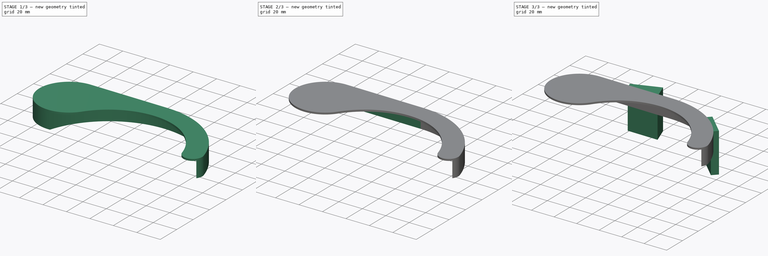
[diagram: build sequence overview — one tinted view per stage of 3, left to right]
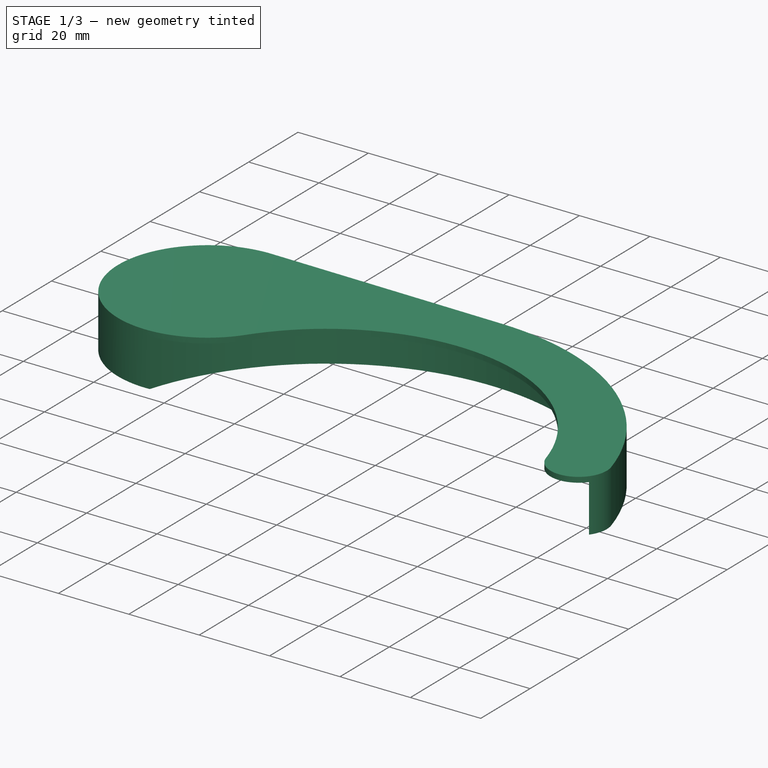
[diagram: stage 1 of 3 — iso view after this stage's code; geometry added in this stage tinted green]
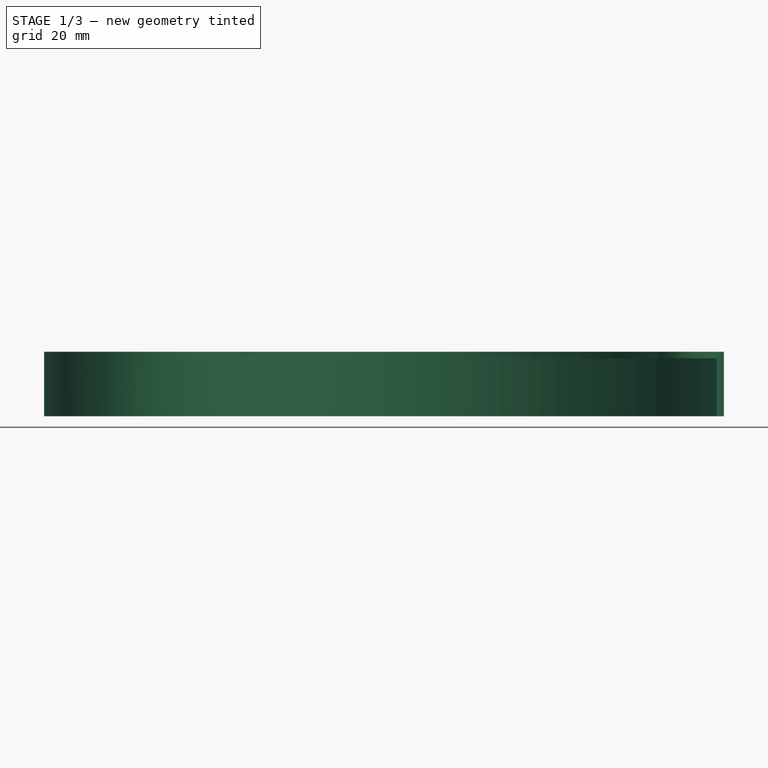
[diagram: stage 1 of 3 — front view after this stage's code; geometry added in this stage tinted green]
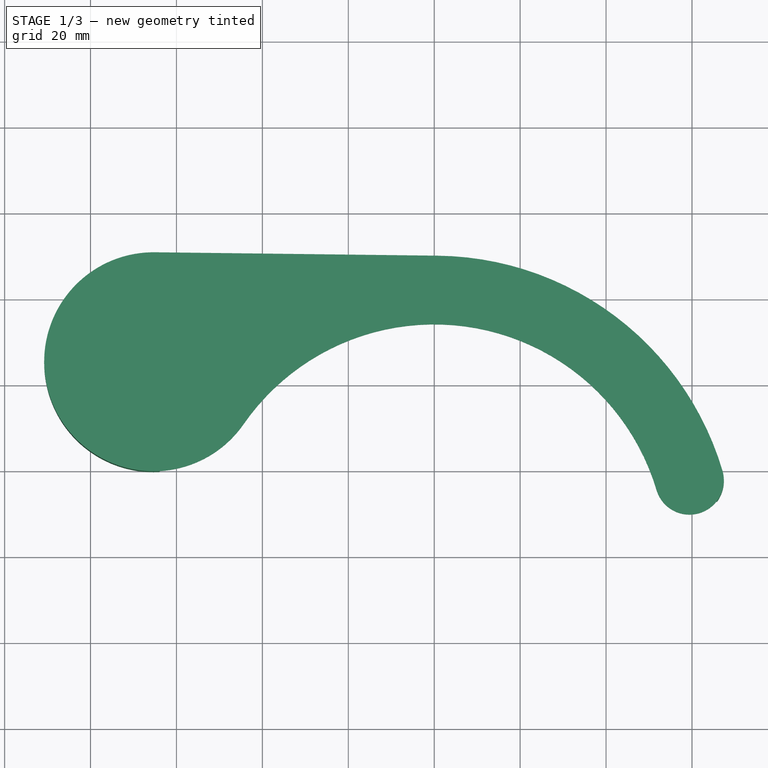
[diagram: stage 1 of 3 — top view after this stage's code; geometry added in this stage tinted green]
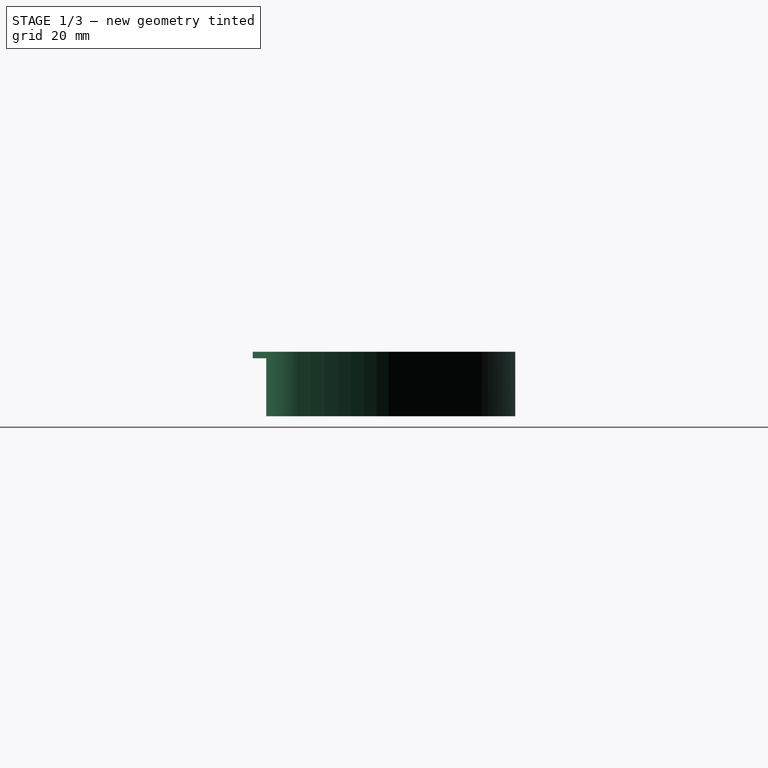
[diagram: stage 1 of 3 — right view after this stage's code; geometry added in this stage tinted green]
FCSTD DOCUMENT  (FreeCAD 0.16R)
Label: 32t
License: All rights reserved
LicenseURL: http://en.wikipedia.org/wiki/All_rights_reserved
objects: Sketcher::SketchObject×5, PartDesign::Pad×3, PartDesign::Pocket×2
note: 15 computed .brp shape members not serialized (recipe doc carries the construction recipe); baked Part::Feature solids carry a one-line shape summary decoded from their .brp

FEATURE [Sketcher::SketchObject] Sketch001
  sketch-geometry (10):
    g0: LineSegment [constr] StartX=0 StartY=0 StartZ=0 EndX=-51.303 EndY=140.954 EndZ=0
    g1: LineSegment [constr] StartX=0 StartY=0 StartZ=0 EndX=104.199 EndY=107.901 EndZ=0
    g2: Circle [constr] CenterX=0 CenterY=0 CenterZ=0 NormalX=0 NormalY=0 NormalZ=1 Radius=65
    g3: Circle [constr] CenterX=-330 CenterY=50 CenterZ=0 NormalX=0 NormalY=0 NormalZ=1 Radius=19
    g4: LineSegment [constr] StartX=-329.77 StartY=68.9986 StartZ=0 EndX=0.787158 EndY=64.9952 EndZ=0
    g5: ArcOfCircle CenterX=0 CenterY=0 CenterZ=0 NormalX=0 NormalY=0 NormalZ=1 Radius=70 StartAngle=0.289752 EndAngle=1.55869
    g6: LineSegment StartX=0.847707 StartY=69.9949 StartZ=0 EndX=-65 EndY=70.7923 EndZ=0
    g7: ArcOfCircle CenterX=-65.3087 CenterY=45.3081 CenterZ=0 NormalX=0 NormalY=0 NormalZ=1 Radius=25.4861 StartAngle=1.55868 EndAngle=5.67666
    g8: ArcOfCircle CenterX=59.4155 CenterY=17.7143 CenterZ=0 NormalX=0 NormalY=0 NormalZ=1 Radius=8 StartAngle=3.43134 EndAngle=6.57294
    g9: ArcOfCircle CenterX=0 CenterY=0 CenterZ=0 NormalX=0 NormalY=0 NormalZ=1 Radius=54 StartAngle=0.289752 EndAngle=2.53507
  constraints (32):
    c: Coincident(g0,g-1)
    c: Coincident(g1,g-1)
    c: Angle(g1,g0) = 1.11701
    c: Angle(g0) = 1.91986
    c: Coincident(g2,g-1)
    c: Radius(g2) = 65
    c: DistanceX(g3) = -330
    c: Radius(g3) = 19
    c: PointOnObject(g4,g3)
    c: PointOnObject(g4,g2)
    c: Tangent(g4,g2)
    c: Tangent(g4,g3)
    c: DistanceY(g3) = 50
    c: Distance(g0) = 150
    c: Distance(g1) = 150
    c: Coincident(g5,g-1)
    c: Radius(g5) = 70
    c: Coincident(g6,g5)
    c: Tangent(g5,g6)
    c: Parallel(g6,g4)
    c: Coincident(g7,g6)
    c: Tangent(g6,g7)
    c: Tangent(g8,g5)
    c: Coincident(g8,g5)
    c: Radius(g8) = 8
    c: Coincident(g9,g-1)
    c: Coincident(g9,g8)
    c: Tangent(g8,g9)
    c: Coincident(g7,g9)
    c: Tangent(g7,g9)
    c: DistanceX(g6) = -65
    c: DistanceY(g5) = 20
FEATURE [PartDesign::Pad] Pad
  Length = 15
  Length2 = 100
  Sketch = -> Sketch001
  Type = 0
FEATURE [Sketcher::SketchObject] Sketch002
  Placement = pos=(0,0,0) rot=(1,0,0;3.14159rad)
  Support = -> Pad [Face6]
  sketch-geometry (1):
    g0: Circle CenterX=0 CenterY=0 CenterZ=0 NormalX=0 NormalY=0 NormalZ=1 Radius=67
  constraints (2):
    c: Coincident(g0,g-1)
    c: Radius(g0) = 67
FEATURE [PartDesign::Pocket] Pocket
  Length = 13.5
  Sketch = -> Sketch002
  Type = 0
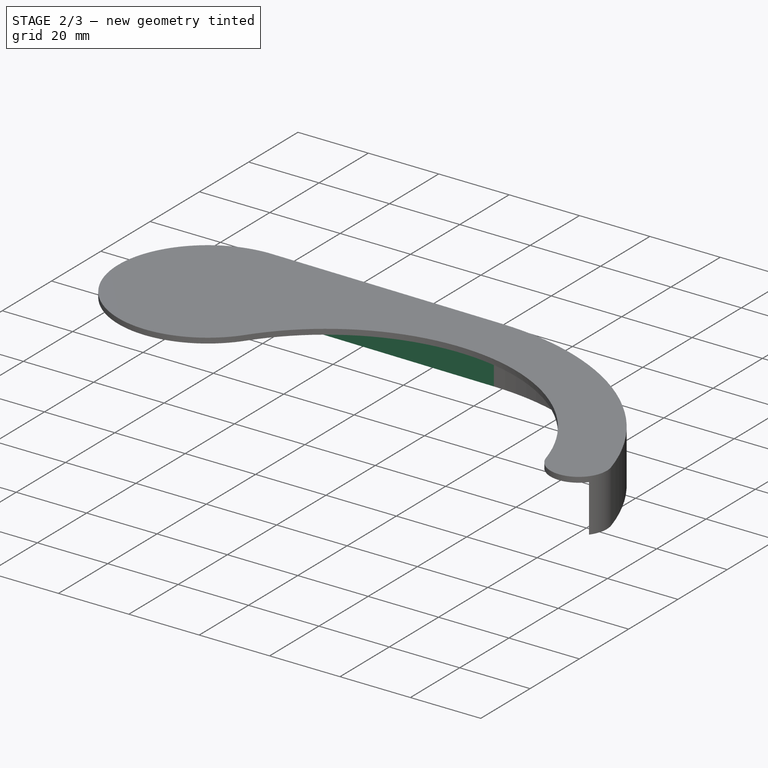
[diagram: stage 2 of 3 — iso view after this stage's code; geometry added in this stage tinted green]
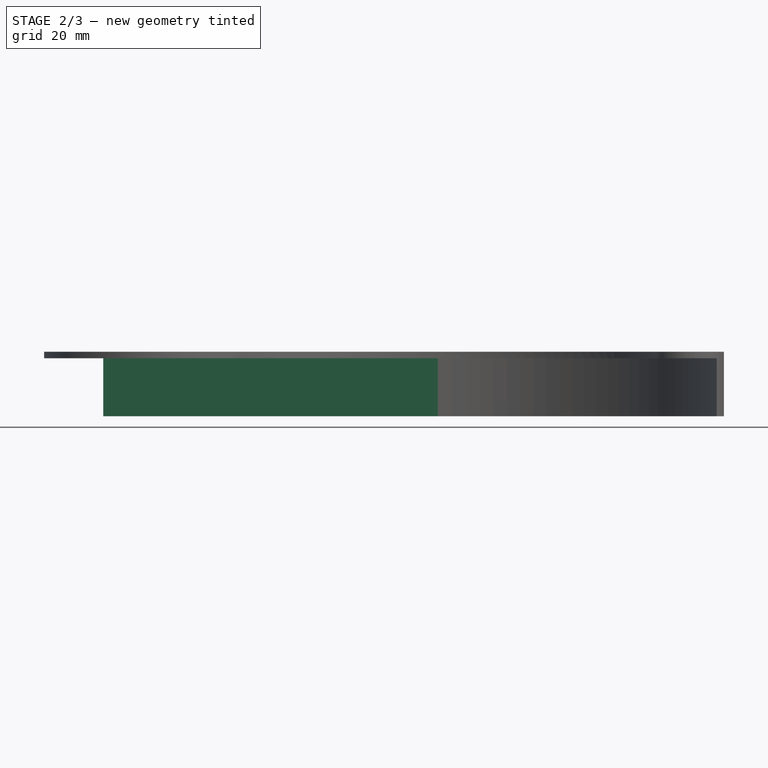
[diagram: stage 2 of 3 — front view after this stage's code; geometry added in this stage tinted green]
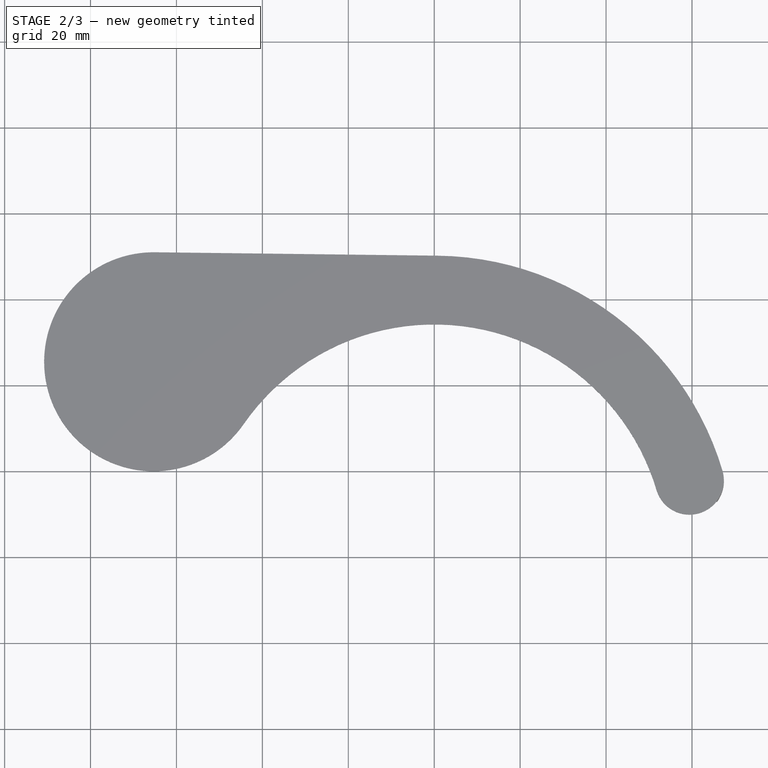
[diagram: stage 2 of 3 — top view after this stage's code; geometry added in this stage tinted green]
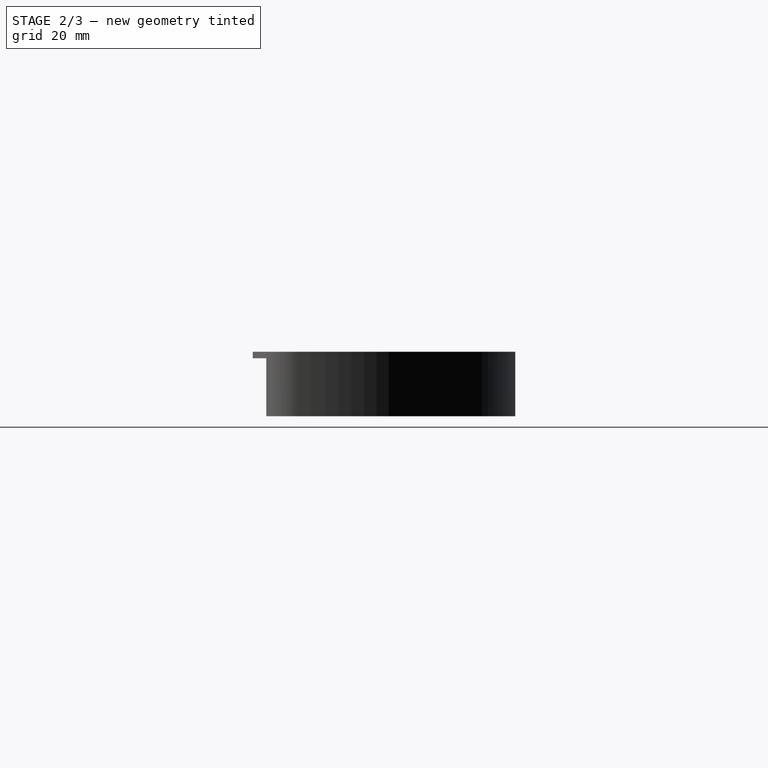
[diagram: stage 2 of 3 — right view after this stage's code; geometry added in this stage tinted green]
FEATURE [Sketcher::SketchObject] Sketch003
  ExternalGeometry = -> [Pocket]
  Placement = pos=(0,0,0) rot=(1,0,0;3.14159rad)
  Support = -> Pocket [Face4]
  sketch-geometry (3):
    g0: LineSegment StartX=-152.534 StartY=-68.8523 StartZ=0 EndX=0.811393 EndY=-66.9951 EndZ=0
    g1: LineSegment StartX=0.811393 StartY=-66.9951 StartZ=0 EndX=-35.4631 EndY=35.7409 EndZ=0
    g2: LineSegment StartX=-35.4631 StartY=35.7409 StartZ=0 EndX=-152.534 EndY=-68.8523 EndZ=0
  constraints (9):
    c: Coincident(g0,g1)
    c: Coincident(g1,g2)
    c: Coincident(g0,g2)
    c: PointOnObject(g0,g-4)
    c: Tangent(g0,g-4)
    c: Parallel(g0,g-3)
    c: DistanceY(g1) = 35.7409
    c: DistanceX(g1) = -35.4631
    c: Distance(g0) = 153.357
FEATURE [PartDesign::Pocket] Pocket001
  Length = 13.5
  Sketch = -> Sketch003
  Type = 0
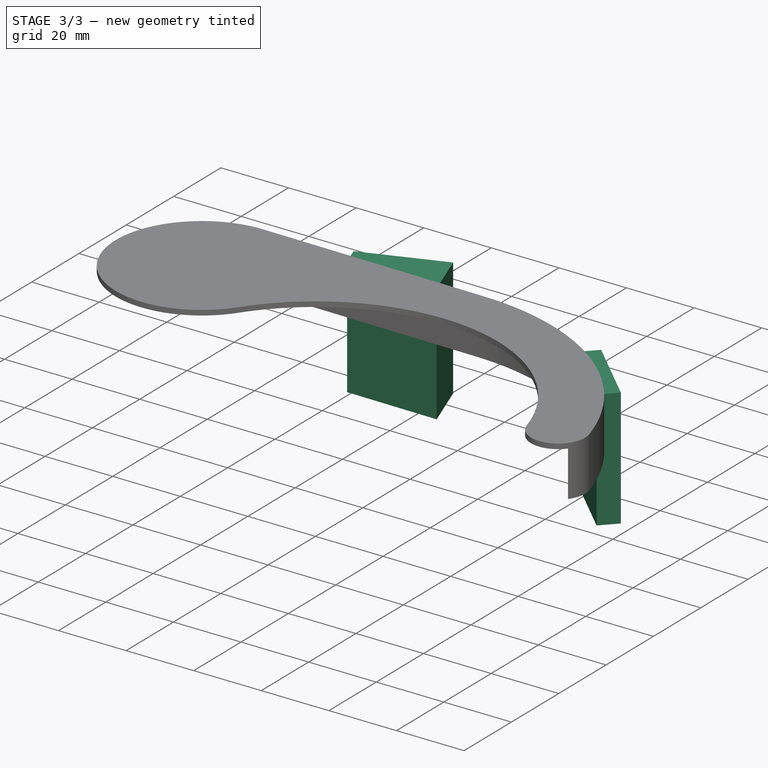
[diagram: stage 3 of 3 — iso view after this stage's code; geometry added in this stage tinted green]
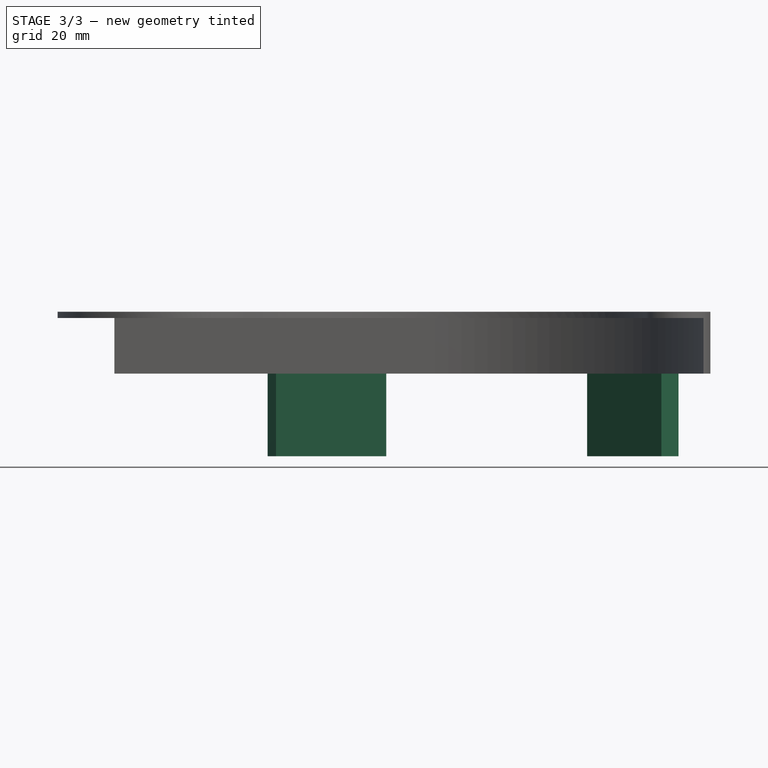
[diagram: stage 3 of 3 — front view after this stage's code; geometry added in this stage tinted green]
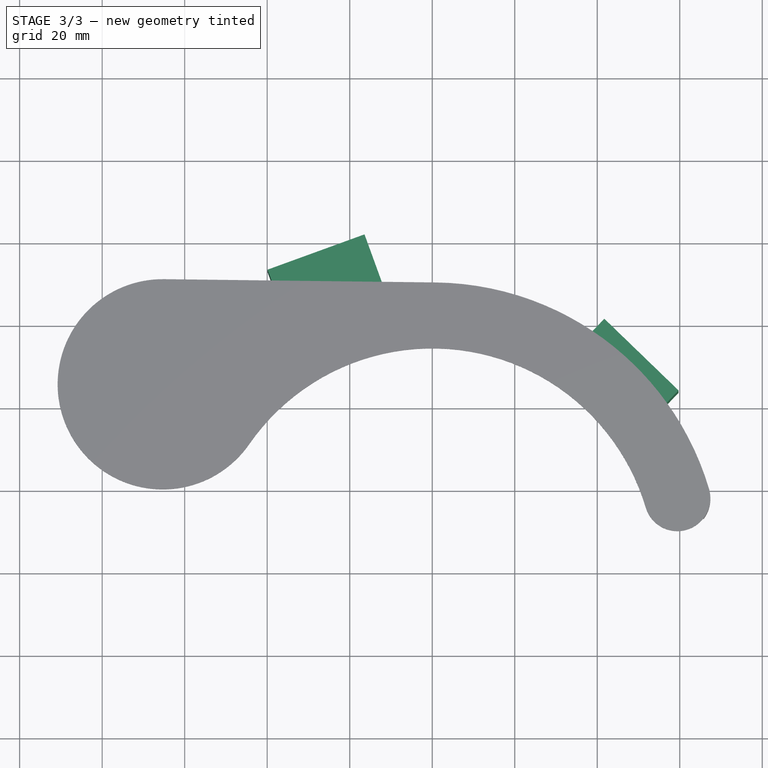
[diagram: stage 3 of 3 — top view after this stage's code; geometry added in this stage tinted green]
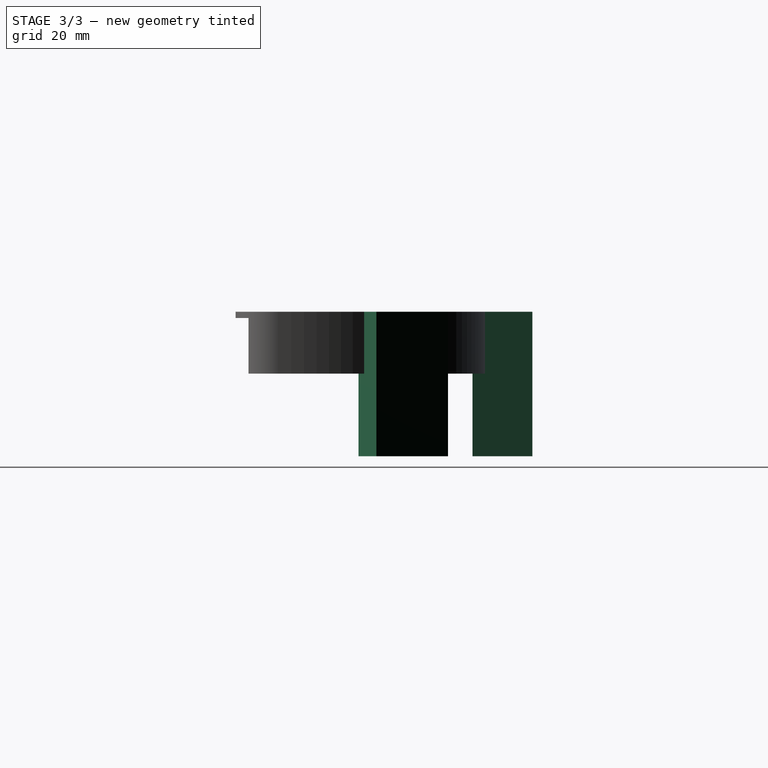
[diagram: stage 3 of 3 — right view after this stage's code; geometry added in this stage tinted green]
FEATURE [Sketcher::SketchObject] Sketch005
  ExternalGeometry = -> [Pocket001]
  Placement = pos=(0,0,15) rot=(0,0,1;0rad)
  Support = -> Pocket001 [Face5]
  sketch-geometry (7):
    g0: LineSegment [constr] StartX=0 StartY=0 StartZ=0 EndX=-51.303 EndY=140.954 EndZ=0
    g1: LineSegment [constr] StartX=0 StartY=0 StartZ=0 EndX=104.199 EndY=107.901 EndZ=0
    g2: Circle [constr] CenterX=-330 CenterY=50 CenterZ=0 NormalX=0 NormalY=0 NormalZ=1 Radius=19
    g3: LineSegment StartX=37.5504 StartY=56.879 StartZ=0 EndX=41.7183 EndY=61.195 EndZ=0
    g4: LineSegment StartX=41.7183 StartY=61.195 StartZ=0 EndX=59.7018 EndY=43.8286 EndZ=0
    g5: LineSegment StartX=59.7018 StartY=43.8286 StartZ=0 EndX=55.5339 EndY=39.5125 EndZ=0
    g6: LineSegment StartX=55.5339 StartY=39.5125 StartZ=0 EndX=37.5504 EndY=56.879 EndZ=0
  constraints (21):
    c: Coincident(g0,g-1)
    c: Coincident(g1,g-1)
    c: Angle(g1,g0) = 1.11701
    c: Angle(g0) = 1.91986
    c: DistanceX(g2) = -330
    c: Radius(g2) = 19
    c: DistanceY(g2) = 50
    c: Distance(g0) = 150
    c: Distance(g1) = 150
    c: Coincident(g3,g4)
    c: Coincident(g4,g5)
    c: Coincident(g5,g6)
    c: Coincident(g6,g3)
    c: Perpendicular(g1,g4)
    c: Parallel(g6,g4)
    c: Parallel(g5,g3)
    c: Perpendicular(g4,g3)
    c: Distance(g5) = 6
    c: Symmetric(g4,g3,g1)
    c: Distance(g4) = 25
    c: Distance(g-1,g6) = 67
FEATURE [PartDesign::Pad] Pad001
  Length = 35
  Length2 = 100
  Reversed = true
  Sketch = -> Sketch005
  Type = 0
FEATURE [Sketcher::SketchObject] Sketch006
  ExternalGeometry = -> [Pocket001]
  Placement = pos=(0,0,15) rot=(0,0,1;0rad)
  Support = -> Pad001 [Face6]
  sketch-geometry (7):
    g0: LineSegment [constr] StartX=0 StartY=0 StartZ=0 EndX=-51.303 EndY=140.954 EndZ=0
    g1: LineSegment [constr] StartX=0 StartY=0 StartZ=0 EndX=104.199 EndY=107.901 EndZ=0
    g2: Circle [constr] CenterX=-330 CenterY=50 CenterZ=0 NormalX=0 NormalY=0 NormalZ=1 Radius=19
    g3: LineSegment StartX=-37.8569 StartY=67.4634 StartZ=0 EndX=-39.909 EndY=73.1016 EndZ=0
    g4: LineSegment StartX=-39.909 StartY=73.1016 StartZ=0 EndX=-16.4167 EndY=81.6521 EndZ=0
    g5: LineSegment StartX=-16.4167 StartY=81.6521 StartZ=0 EndX=-11.1347 EndY=67.1398 EndZ=0
    g6: LineSegment StartX=-11.1347 StartY=67.1398 StartZ=0 EndX=-37.8569 EndY=67.4634 EndZ=0
  constraints (20):
    c: Coincident(g0,g-1)
    c: Coincident(g1,g-1)
    c: Angle(g1,g0) = 1.11701
    c: Angle(g0) = 1.91986
    c: DistanceX(g2) = -330
    c: Radius(g2) = 19
    c: DistanceY(g2) = 50
    c: Distance(g0) = 150
    c: Distance(g1) = 150
    c: Coincident(g3,g4)
    c: Coincident(g4,g5)
    c: Coincident(g5,g6)
    c: Coincident(g6,g3)
    c: Parallel(g5,g3)
    c: Distance(g4) = 25
    c: Symmetric(g4,g3,g0)
    c: Perpendicular(g4,g3)
    c: Distance(g3,g3) = 6
    c: Parallel(g6,g-4)
    c: Distance(g5,g-4) = 3
FEATURE [PartDesign::Pad] Pad002
  Length = 35
  Length2 = 100
  Reversed = true
  Sketch = -> Sketch006
  Type = 0
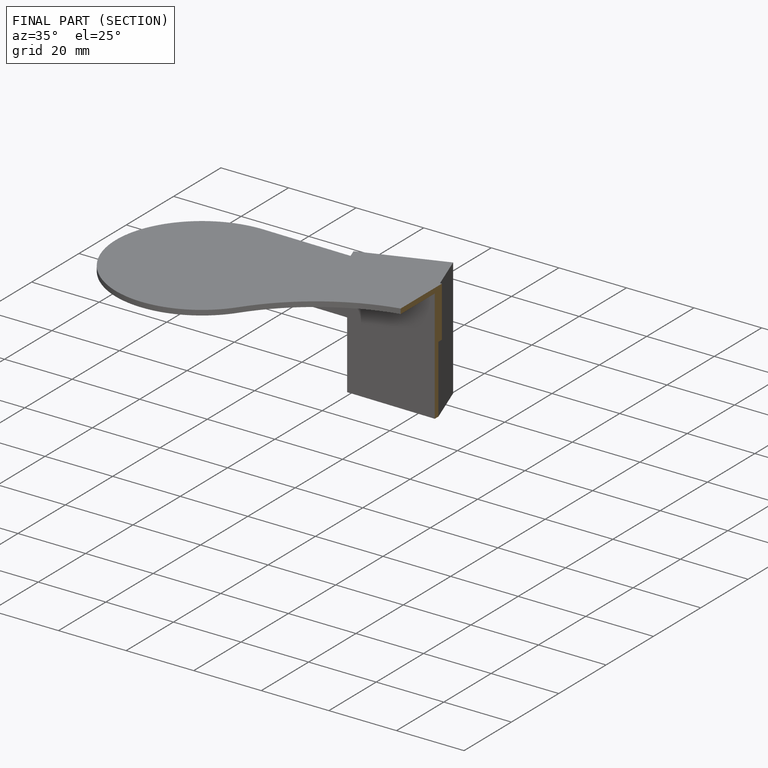
[diagram: finished part — half-section view (interior)]
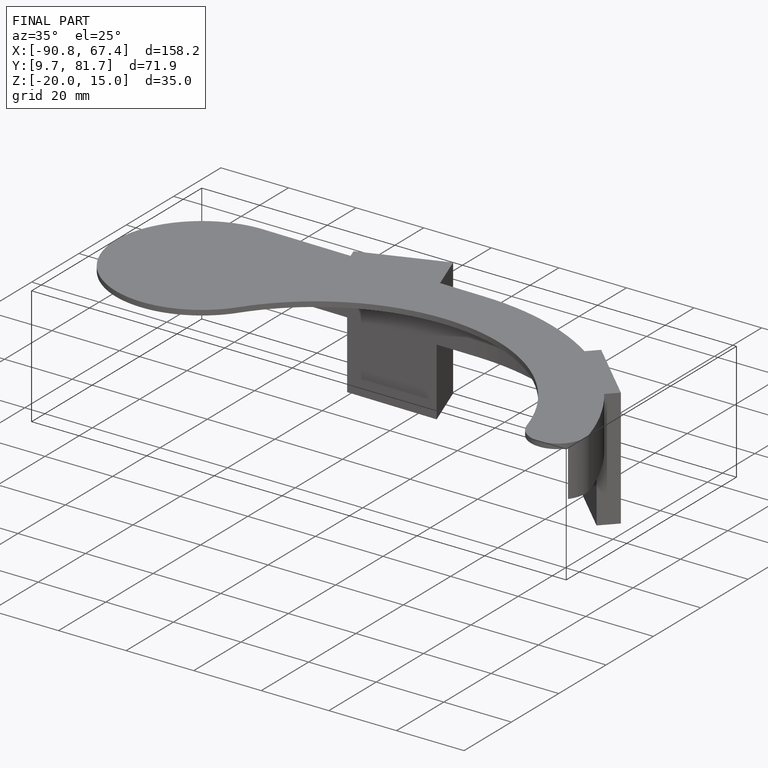
[diagram: finished part — iso view with bounding-box wireframe]
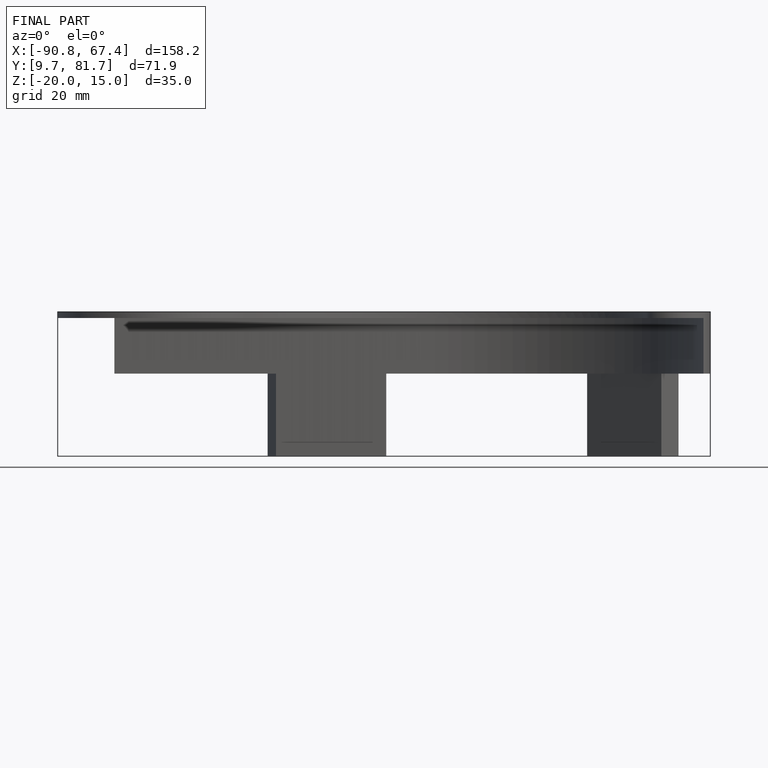
[diagram: finished part — front view with bounding-box wireframe]
